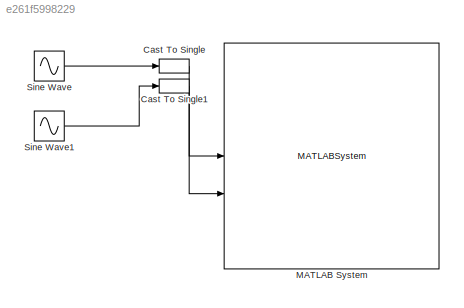
MODEL slx_e261f5998229
KIND model
CONFIG AbsTol = auto
CONFIG EnableMultiTasking = on
CONFIG FixedStep = auto
CONFIG MaxStep = auto
CONFIG MinStep = auto
CONFIG RelTol = 1e-3
CONFIG SampleTimeConstraint = Unconstrained
CONFIG SolverName = ode45
CONFIG StartTime = 0.0
CONFIG StopTime = 10.0
BLOCK [DataTypeConversion] Cast To Single
  OutDataTypeStr = single
  RndMeth = Floor
  SaturateOnIntegerOverflow = off
BLOCK [DataTypeConversion] Cast To Single1
  OutDataTypeStr = single
  RndMeth = Floor
  SaturateOnIntegerOverflow = off
BLOCK [MATLABSystem] MATLAB System
  MaskDisplay = disp('Robot_Mecanum_rosserial_Driver');\nport_label('input',1,'a_x');\nport_label('input',2,'a_y');\nport_label('input',3,'w_z');\nport_label('input',4,'theta');\nport_label('input',5,'w1');\nport_label('input',6,'w2');\nport_label('input',7,'w3');\nport_label('input',8,'w4');\nport_label('input',9,'V');\nport_label('input',10,'I');\nport_label('output',1,'ref_w1');\nport_label('output',2,'ref_w2');\nport_labe...<+56ch>
  MaskType = Robot_Mecanum_rosserial_Driver
  SampleTime = 0.1
  System = Robot_Mecanum_rosserial_Driver
BLOCK [Sin] Sine Wave
  SampleTime = 0.1
BLOCK [Sin] Sine Wave1
  Frequency = 0.1
  SampleTime = 0.1
LINE Cast To Single1:1 -> MATLAB System:2
LINE Cast To Single:1 -> MATLAB System:1
LINE Sine Wave1:1 -> Cast To Single1:1
LINE Sine Wave:1 -> Cast To Single:1
